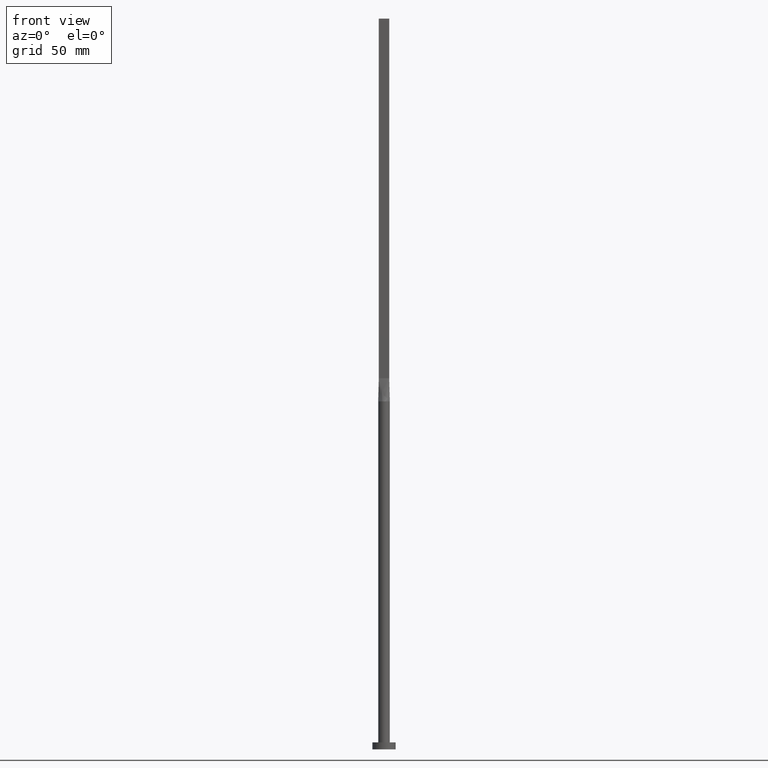
[diagram: clean part render]
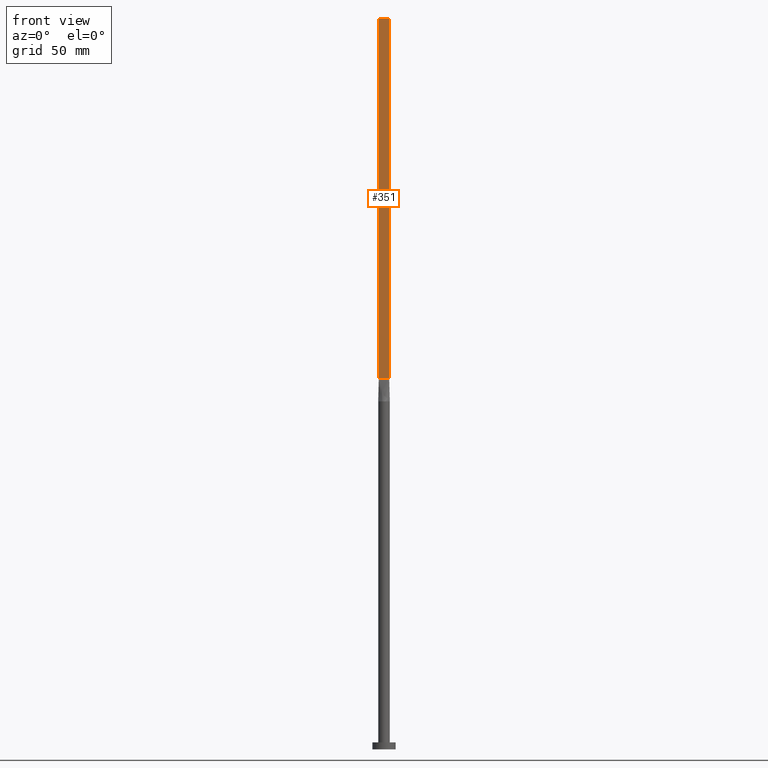
[diagram: same view with one face highlighted and labeled with its STEP entity id]
A machine part, front view. The second image highlights one B-rep face of the part: STEP entity #351.
In plain terms, the highlighted planar face has unit normal (0, 1, -0).
Its self-contained STEP definition (entity closure, byte-faithful):
#7 = PLANE ( 'NONE',  #385 ) ;
#14 = CARTESIAN_POINT ( 'NONE',  ( 2.250000000000000000, -0.4999999999999997780, 315.0000000000000000 ) ) ;
#19 = DIRECTION ( 'NONE',  ( -0.000000000000000000, -0.000000000000000000, -1.000000000000000000 ) ) ;
#36 = ORIENTED_EDGE ( 'NONE', *, *, #472, .F. ) ;
#43 = ORIENTED_EDGE ( 'NONE', *, *, #478, .T. ) ;
#50 = ORIENTED_EDGE ( 'NONE', *, *, #389, .T. ) ;
#56 = CARTESIAN_POINT ( 'NONE',  ( -2.250000000000000000, -0.4999999999999994449, 315.0000000000000000 ) ) ;
#63 = CARTESIAN_POINT ( 'NONE',  ( 2.250000000000000000, -0.4999999999999997780, 315.0000000000000000 ) ) ;
#66 = CARTESIAN_POINT ( 'NONE',  ( 2.250000000000000000, -0.4999999999999997780, 160.0000000000000000 ) ) ;
#71 = VECTOR ( 'NONE', #379, 1000.000000000000000 ) ;
#101 = VERTEX_POINT ( 'NONE', #56 ) ;
#116 = CARTESIAN_POINT ( 'NONE',  ( -2.250000000000000000, -0.4999999999999994449, 160.0000000000000000 ) ) ;
#119 = LINE ( 'NONE', #209, #71 ) ;
#122 = DIRECTION ( 'NONE',  ( 1.000000000000000000, -7.228014483236697048E-17, 0.000000000000000000 ) ) ;
#137 = VECTOR ( 'NONE', #122, 1000.000000000000000 ) ;
#146 = FACE_OUTER_BOUND ( 'NONE', #581, .T. ) ;
#167 = DIRECTION ( 'NONE',  ( -1.000000000000000000, 7.228014483236697048E-17, 0.000000000000000000 ) ) ;
#191 = VERTEX_POINT ( 'NONE', #490 ) ;
#194 = CARTESIAN_POINT ( 'NONE',  ( -2.250000000000000000, -0.4999999999999994449, 315.0000000000000000 ) ) ;
#200 = DIRECTION ( 'NONE',  ( 7.228014483236697048E-17, 1.000000000000000000, -0.000000000000000000 ) ) ;
#209 = CARTESIAN_POINT ( 'NONE',  ( -2.250000000000000000, -0.4999999999999994449, 315.0000000000000000 ) ) ;
#260 = DIRECTION ( 'NONE',  ( 1.000000000000000000, -7.228014483236697048E-17, 0.000000000000000000 ) ) ;
#282 = ORIENTED_EDGE ( 'NONE', *, *, #531, .F. ) ;
#312 = LINE ( 'NONE', #492, #363 ) ;
#351 = ADVANCED_FACE ( 'NONE', ( #146 ), #7, .F. ) ;
#363 = VECTOR ( 'NONE', #260, 1000.000000000000000 ) ;
#379 = DIRECTION ( 'NONE',  ( -0.000000000000000000, -0.000000000000000000, -1.000000000000000000 ) ) ;
#385 = AXIS2_PLACEMENT_3D ( 'NONE', #194, #200, #167 ) ;
#389 = EDGE_CURVE ( 'NONE', #191, #491, #419, .T. ) ;
#419 = LINE ( 'NONE', #116, #137 ) ;
#422 = LINE ( 'NONE', #14, #549 ) ;
#451 = VERTEX_POINT ( 'NONE', #63 ) ;
#472 = EDGE_CURVE ( 'NONE', #451, #491, #422, .T. ) ;
#478 = EDGE_CURVE ( 'NONE', #101, #191, #119, .T. ) ;
#490 = CARTESIAN_POINT ( 'NONE',  ( -2.250000000000000000, -0.4999999999999994449, 160.0000000000000000 ) ) ;
#491 = VERTEX_POINT ( 'NONE', #66 ) ;
#492 = CARTESIAN_POINT ( 'NONE',  ( -2.250000000000000000, -0.4999999999999994449, 315.0000000000000000 ) ) ;
#531 = EDGE_CURVE ( 'NONE', #101, #451, #312, .T. ) ;
#549 = VECTOR ( 'NONE', #19, 1000.000000000000000 ) ;
#581 = EDGE_LOOP ( 'NONE', ( #50, #36, #282, #43 ) ) ;